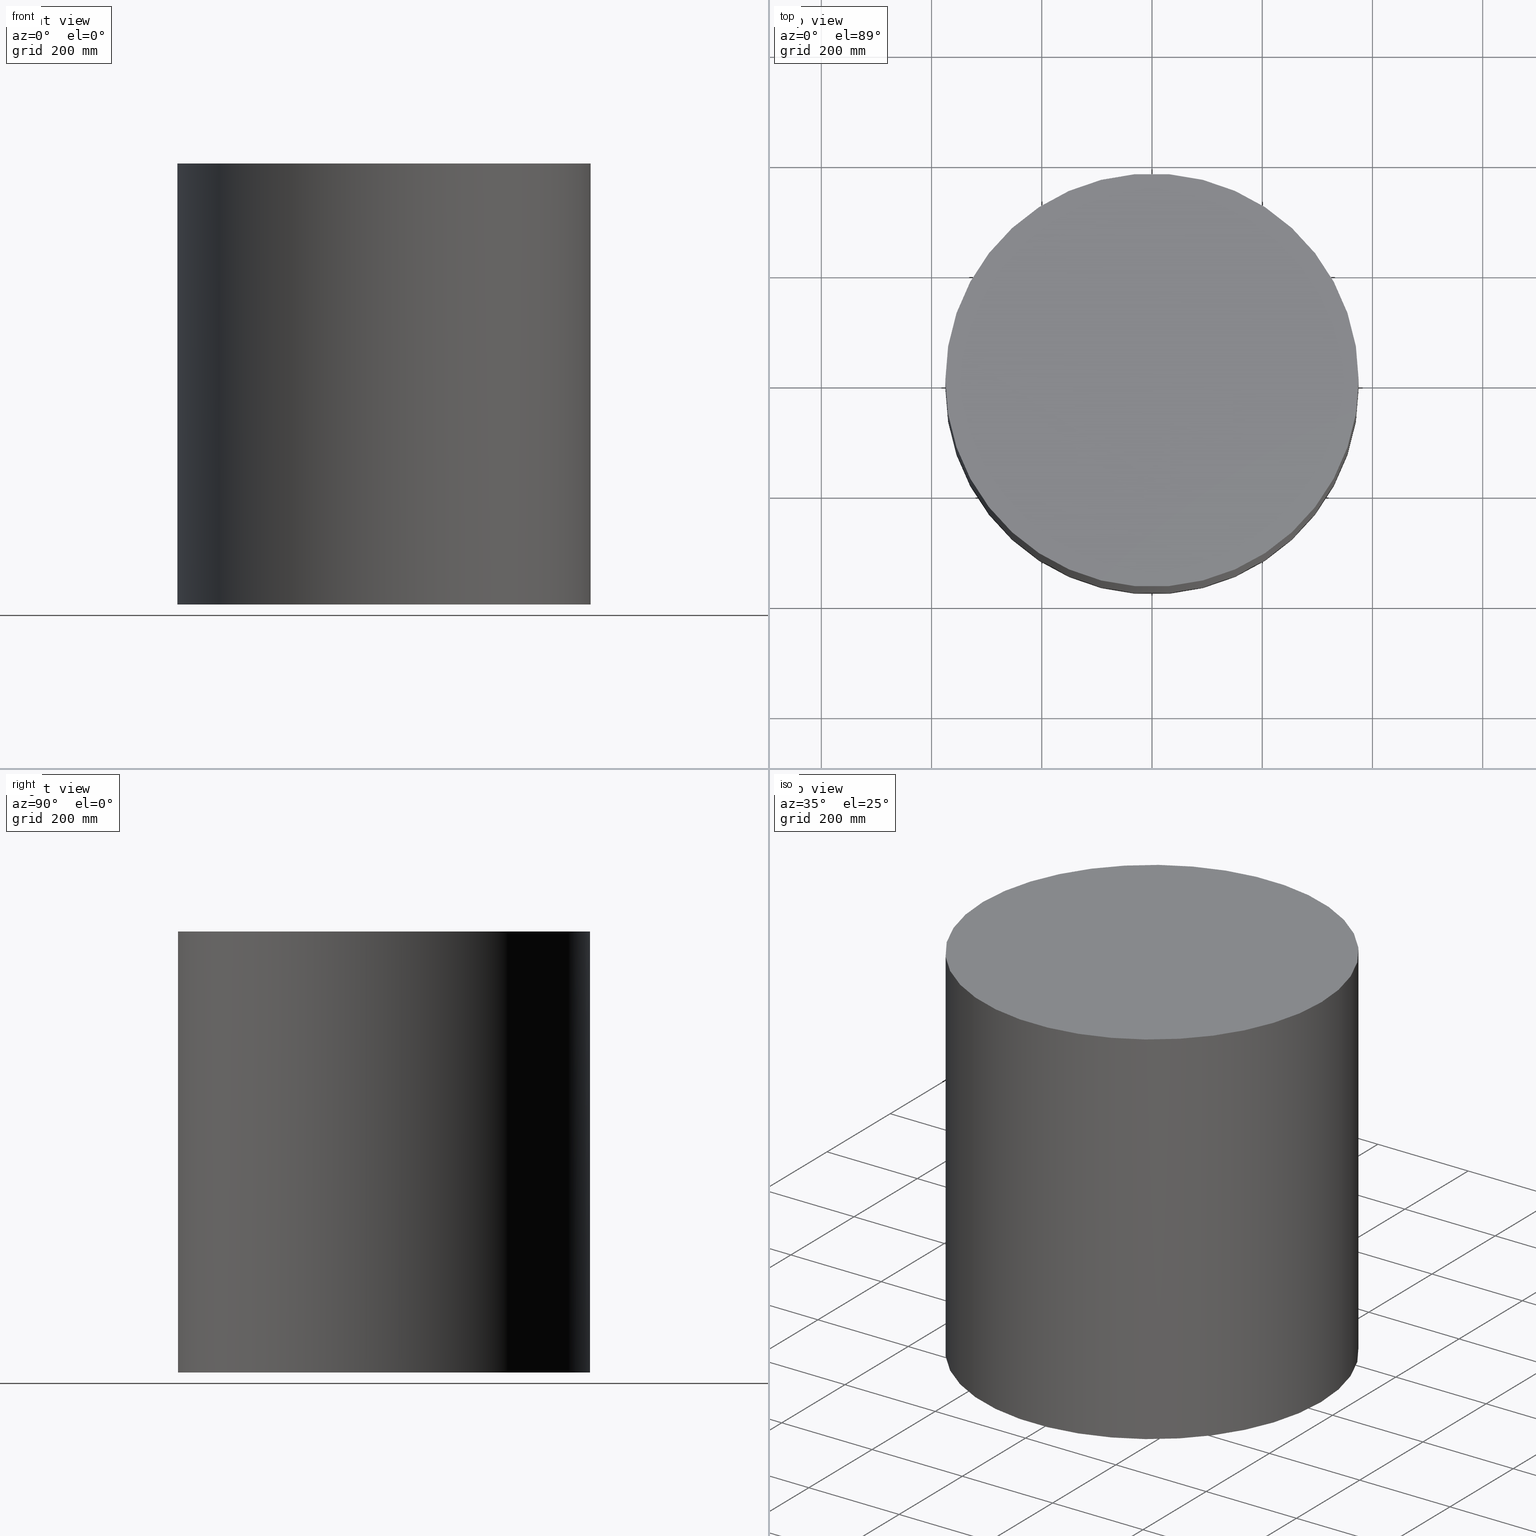
[diagram: canonical four-view strip — front | top / right | iso, engineering-drawing reading convention]
A machine part, canonical four-view strip (front | top / right | iso — engineering-drawing reading convention). The complete STEP part file that produces these views, byte-faithful:
ISO-10303-21;
HEADER;

/* File generated by Shapr3D Version 3.0 */

FILE_DESCRIPTION(('HOOPS Exchange Step'),'2;1');

FILE_NAME('/private/var/mobile/Containers/Data/Application/3E25A3B7-4A58-4507-A4CF-E9063E6E23B6/tmp/export/temp_export',
'2023-07-04T15:12:05+02:00',
('mobile'),
('Shapr3D Limited'),
'HOOPS Exchange 2022.2',
'Shapr3D',
'Authorized');

FILE_SCHEMA( ('AUTOMOTIVE_DESIGN { 1 0 10303 214 1 1 1 1 }') );

ENDSEC;

DATA;
#3=(NAMED_UNIT(*)PLANE_ANGLE_UNIT()SI_UNIT($,.RADIAN.));
#4=PLANE_ANGLE_MEASURE_WITH_UNIT(PLANE_ANGLE_MEASURE(0.0174532925),#3);
#5=(CONVERSION_BASED_UNIT('DEGREE',#4)NAMED_UNIT(#6)PLANE_ANGLE_UNIT());
#6=DIMENSIONAL_EXPONENTS(0.,0.,0.,0.,0.,0.,0.);
#7=(NAMED_UNIT(*)SI_UNIT($,.STERADIAN.)SOLID_ANGLE_UNIT());
#8=(LENGTH_UNIT()NAMED_UNIT(*)SI_UNIT(.MILLI.,.METRE.));
#9=UNCERTAINTY_MEASURE_WITH_UNIT(LENGTH_MEASURE(1.000000E-05),#8,'DISTANCE_ACCURACY_VALUE','Maximum Tolerance applied to model');
#10=(GEOMETRIC_REPRESENTATION_CONTEXT(3)GLOBAL_UNCERTAINTY_ASSIGNED_CONTEXT((#9))GLOBAL_UNIT_ASSIGNED_CONTEXT((#8,#5,#7))REPRESENTATION_CONTEXT('','root'));
#12=CARTESIAN_POINT('',(0.,0.,0.));
#13=DIRECTION('',(0.,0.,1.));
#14=DIRECTION('',(1.,0.,0.));
#15=AXIS2_PLACEMENT_3D('TS3D_PRODUCT_CSYS',#12,#13,#14);
#27=CARTESIAN_POINT('',(0.,0.,800.));
#28=DIRECTION('',(0.,0.,-1.));
#29=DIRECTION('',(-1.,0.,0.));
#30=AXIS2_PLACEMENT_3D('',#27,#28,#29);
#31=CYLINDRICAL_SURFACE('',#30,375.);
#32=CARTESIAN_POINT('',(-375.,0.,0.));
#33=VERTEX_POINT('',#32);
#34=CARTESIAN_POINT('',(-375.,0.,800.));
#35=VERTEX_POINT('',#34);
#36=CARTESIAN_POINT('',(-375.,0.,0.));
#37=DIRECTION('',(-0.,-0.,1.));
#38=VECTOR('',#37,800.);
#39=LINE('',#36,#38);
#40=EDGE_CURVE('',#33,#35,#39,.T.);
#41=ORIENTED_EDGE('',*,*,#40,.T.);
#42=CARTESIAN_POINT('',(375.,-0.,800.));
#43=VERTEX_POINT('',#42);
#44=CARTESIAN_POINT('',(0.,0.,800.));
#45=DIRECTION('',(0.,0.,1.));
#46=DIRECTION('',(1.,0.,-0.));
#47=AXIS2_PLACEMENT_3D('',#44,#45,#46);
#48=CIRCLE('',#47,375.);
#49=EDGE_CURVE('',#43,#35,#48,.T.);
#50=ORIENTED_EDGE('',*,*,#49,.F.);
#51=CARTESIAN_POINT('',(0.,0.,800.));
#52=DIRECTION('',(0.,0.,1.));
#53=DIRECTION('',(1.,0.,-0.));
#54=AXIS2_PLACEMENT_3D('',#51,#52,#53);
#55=CIRCLE('',#54,375.);
#56=EDGE_CURVE('',#35,#43,#55,.T.);
#57=ORIENTED_EDGE('',*,*,#56,.F.);
#58=ORIENTED_EDGE('',*,*,#40,.F.);
#59=CARTESIAN_POINT('',(375.,-0.,0.));
#60=VERTEX_POINT('',#59);
#61=CARTESIAN_POINT('',(0.,0.,0.));
#62=DIRECTION('',(0.,0.,1.));
#63=DIRECTION('',(1.,0.,-0.));
#64=AXIS2_PLACEMENT_3D('',#61,#62,#63);
#65=CIRCLE('',#64,375.);
#66=EDGE_CURVE('',#33,#60,#65,.T.);
#67=ORIENTED_EDGE('',*,*,#66,.T.);
#68=CARTESIAN_POINT('',(0.,0.,0.));
#69=DIRECTION('',(0.,0.,1.));
#70=DIRECTION('',(1.,0.,-0.));
#71=AXIS2_PLACEMENT_3D('',#68,#69,#70);
#72=CIRCLE('',#71,375.);
#73=EDGE_CURVE('',#60,#33,#72,.T.);
#74=ORIENTED_EDGE('',*,*,#73,.T.);
#75=EDGE_LOOP('',(#41,#50,#57,#58,#67,#74));
#76=FACE_BOUND('',#75,.T.);
#77=ADVANCED_FACE('',(#76),#31,.T.);
#78=CARTESIAN_POINT('',(0.,0.,800.));
#79=DIRECTION('',(0.,0.,1.));
#80=DIRECTION('',(1.,0.,0.));
#81=AXIS2_PLACEMENT_3D('',#78,#79,#80);
#82=PLANE('',#81);
#83=ORIENTED_EDGE('',*,*,#49,.T.);
#84=ORIENTED_EDGE('',*,*,#56,.T.);
#85=EDGE_LOOP('',(#83,#84));
#86=FACE_BOUND('',#85,.T.);
#87=ADVANCED_FACE('',(#86),#82,.T.);
#88=CARTESIAN_POINT('',(0.,0.,0.));
#89=DIRECTION('',(0.,0.,1.));
#90=DIRECTION('',(1.,0.,0.));
#91=AXIS2_PLACEMENT_3D('',#88,#89,#90);
#92=PLANE('',#91);
#93=ORIENTED_EDGE('',*,*,#66,.F.);
#94=ORIENTED_EDGE('',*,*,#73,.F.);
#95=EDGE_LOOP('',(#93,#94));
#96=FACE_BOUND('',#95,.T.);
#97=ADVANCED_FACE('',(#96),#92,.F.);
#98=CLOSED_SHELL('',(#77,#87,#97));
#99=MANIFOLD_SOLID_BREP('K\S\vrper 01',#98);
#100=COLOUR_RGB('',0.494117647,0.494117647,0.525490224);
#101=FILL_AREA_STYLE_COLOUR('',#100);
#102=FILL_AREA_STYLE('',(#101));
#103=SURFACE_STYLE_FILL_AREA(#102);
#104=SURFACE_SIDE_STYLE('',(#103));
#105=SURFACE_STYLE_USAGE(.BOTH.,#104);
#106=PRESENTATION_STYLE_ASSIGNMENT((#105));
#26=STYLED_ITEM('',(#106),#99);
#16=SHAPE_REPRESENTATION('root',(#15),#10);
#17=ADVANCED_BREP_SHAPE_REPRESENTATION('root',(#99),#10);
#114=SHAPE_REPRESENTATION_RELATIONSHIP('','',#16,#17);
#115=APPLICATION_CONTEXT('data for automotive mechanical design processes');
#116=APPLICATION_PROTOCOL_DEFINITION('international standard','automotive_design',1994,#115);
#117=PRODUCT_CONTEXT('',#115,'mechanical');
#118=PRODUCT_DEFINITION_CONTEXT('part definition',#115,'design');
#24=PRODUCT('root','root','',(#117));
#119=PRODUCT_RELATED_PRODUCT_CATEGORY('part','',(#24));
#120=PRODUCT_DEFINITION_FORMATION_WITH_SPECIFIED_SOURCE('','',#24,.NOT_KNOWN.);
#25=PRODUCT_DEFINITION('design','',#120,#118);
#23=PRODUCT_DEFINITION_SHAPE('','',#25);
#121=SHAPE_DEFINITION_REPRESENTATION(#23,#16);
#11=DRAUGHTING_MODEL('',(),#10);
#1=MECHANICAL_DESIGN_GEOMETRIC_PRESENTATION_REPRESENTATION('',(#26),#10);
ENDSEC;
END-ISO-10303-21;
